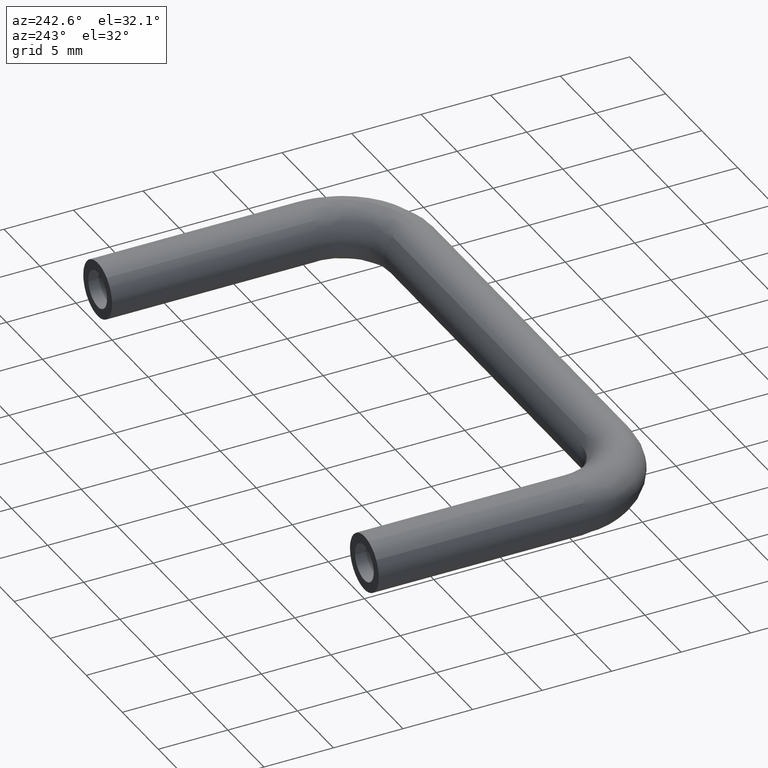
[diagram: clean part render]
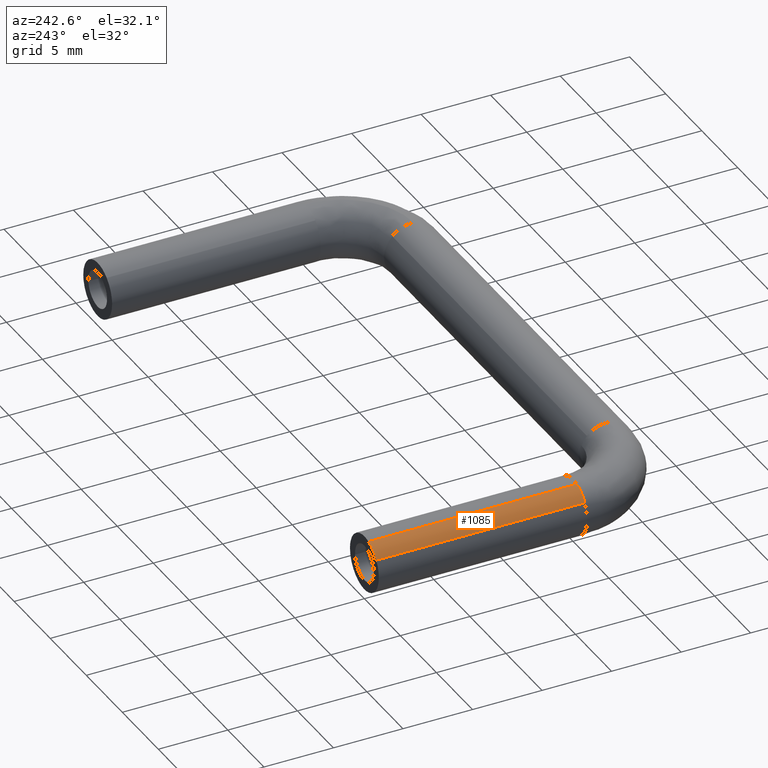
[diagram: same view with one face highlighted and labeled with its STEP entity id]
A machine part, auxiliary view. The second image highlights one B-rep face of the part: STEP entity #1085.
In plain terms, the highlighted face is a freeform B-spline surface patch.
Its self-contained STEP definition (entity closure, byte-faithful):
#894=CARTESIAN_POINT('',(-1.654334544362889,-15.0,1.123911569175985));
#895=VERTEX_POINT('',#894);
#909=CARTESIAN_POINT('',(-1.654334544362891,6.163132E-016,1.123911569175985));
#910=VERTEX_POINT('',#909);
#911=CARTESIAN_POINT('',(-1.654334544362891,6.163132E-016,1.123911569175985));
#912=CARTESIAN_POINT('',(-1.654334544362889,-15.0,1.123911569175985));
#913=QUASI_UNIFORM_CURVE('',1,(#911,#912),.UNSPECIFIED.,.F.,.U.);
#914=EDGE_CURVE('',#910,#895,#913,.T.);
#948=CARTESIAN_POINT('',(-0.568029256808809,-2.775558E-016,1.917639894090389));
#949=VERTEX_POINT('',#948);
#965=CARTESIAN_POINT('',(-0.568029238874980,-15.0,1.917639899402601));
#966=VERTEX_POINT('',#965);
#967=CARTESIAN_POINT('',(-0.568029256808809,-2.775558E-016,1.917639894090389));
#968=CARTESIAN_POINT('',(-0.568029238874980,-15.0,1.917639899402601));
#969=QUASI_UNIFORM_CURVE('',1,(#967,#968),.UNSPECIFIED.,.F.,.U.);
#970=EDGE_CURVE('',#949,#966,#969,.T.);
#1037=CARTESIAN_POINT('',(-0.562070620712012,0.375000000005425,1.919404922514991));
#1038=CARTESIAN_POINT('',(-0.565048735597850,0.375000000005425,1.918522764696258));
#1039=CARTESIAN_POINT('',(-1.252924390595085,0.375000000005425,1.714764712830198));
#1040=CARTESIAN_POINT('',(-1.656378056553639,0.375000000005425,1.120903634297740));
#1041=CARTESIAN_POINT('',(-1.658421938143908,0.375000000005425,1.117895155684202));
#1042=CARTESIAN_POINT('',(-0.562070620712010,-15.384375000222551,1.919404922514991));
#1043=CARTESIAN_POINT('',(-0.565048735597848,-15.384375000222539,1.918522764696258));
#1044=CARTESIAN_POINT('',(-1.252924390595083,-15.384375000222551,1.714764712830198));
#1045=CARTESIAN_POINT('',(-1.656378056553638,-15.384375000222553,1.120903634297740));
#1046=CARTESIAN_POINT('',(-1.658421938143907,-15.384375000222549,1.117895155684202));
#1054=(BOUNDED_SURFACE()B_SPLINE_SURFACE(2,1,((#1037,#1042),(#1038,#1043),(#1039,#1044),(#1040,#1045),(#1041,#1046)),.UNSPECIFIED.,.F.,.F.,.U.)B_SPLINE_SURFACE_WITH_KNOTS((3,1,1,3),(2,2),(0.0,0.007276598392428,1.462240808087511,1.469515637815474),(0.0,15.759375000227980),.UNSPECIFIED.)GEOMETRIC_REPRESENTATION_ITEM()RATIONAL_B_SPLINE_SURFACE(((1.001289045018189,1.001289045018189),(1.000644522509095,1.000644522509095),(0.871126983722081,0.871126983722081),(0.855584897866710,0.855584897866710),(0.855507573964689,0.855507573964689)))REPRESENTATION_ITEM('')SURFACE());
#1055=CARTESIAN_POINT('',(-1.654334544362889,-14.999999999999996,1.123911569175985));
#1056=CARTESIAN_POINT('',(-1.252923911299599,-15.0,1.714765418324617));
#1057=CARTESIAN_POINT('',(-0.568029238874980,-15.000000000000005,1.917639899402601));
#1065=(BOUNDED_CURVE()B_SPLINE_CURVE(2,(#1055,#1056,#1057),.UNSPECIFIED.,.F.,.U.)B_SPLINE_CURVE_WITH_KNOTS((3,3),(0.596450219094674,0.701641638561408),.UNSPECIFIED.)CURVE()GEOMETRIC_REPRESENTATION_ITEM()RATIONAL_B_SPLINE_CURVE((0.861192889176256,0.833045223083025,0.908607387928295))REPRESENTATION_ITEM(''));
#1066=EDGE_CURVE('',#895,#966,#1065,.T.);
#1067=ORIENTED_EDGE('',*,*,#1066,.T.);
#1068=ORIENTED_EDGE('',*,*,#970,.F.);
#1069=CARTESIAN_POINT('',(-1.654334544362892,6.163132E-016,1.123911569175985));
#1070=CARTESIAN_POINT('',(-1.252923917225407,0.0,1.714765409602162));
#1071=CARTESIAN_POINT('',(-0.568029256808809,-2.775558E-016,1.917639894090389));
#1079=(BOUNDED_CURVE()B_SPLINE_CURVE(2,(#1069,#1070,#1071),.UNSPECIFIED.,.F.,.U.)B_SPLINE_CURVE_WITH_KNOTS((3,3),(0.596450219094674,0.701641637059280),.UNSPECIFIED.)CURVE()GEOMETRIC_REPRESENTATION_ITEM()RATIONAL_B_SPLINE_CURVE((0.861192889176256,0.833045223484973,0.908607385770247))REPRESENTATION_ITEM(''));
#1080=EDGE_CURVE('',#910,#949,#1079,.T.);
#1081=ORIENTED_EDGE('',*,*,#1080,.F.);
#1082=ORIENTED_EDGE('',*,*,#914,.T.);
#1083=EDGE_LOOP('',(#1067,#1068,#1081,#1082));
#1084=FACE_OUTER_BOUND('',#1083,.T.);
#1085=ADVANCED_FACE('',(#1084),#1054,.T.);